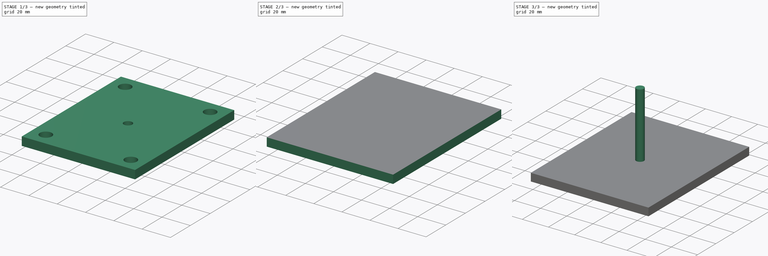
[diagram: build sequence overview — one tinted view per stage of 3, left to right]
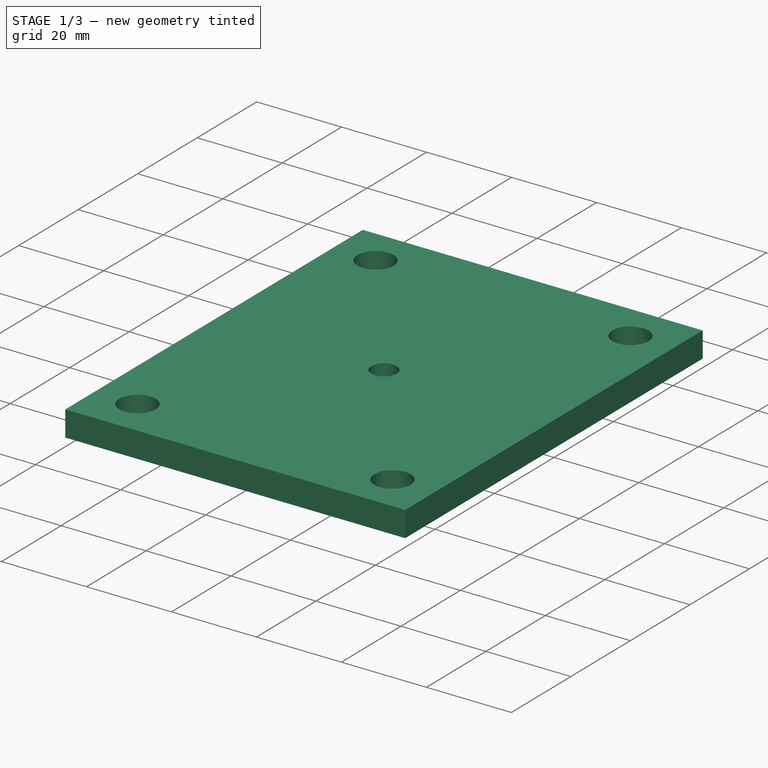
[diagram: stage 1 of 3 — iso view after this stage's code; geometry added in this stage tinted green]
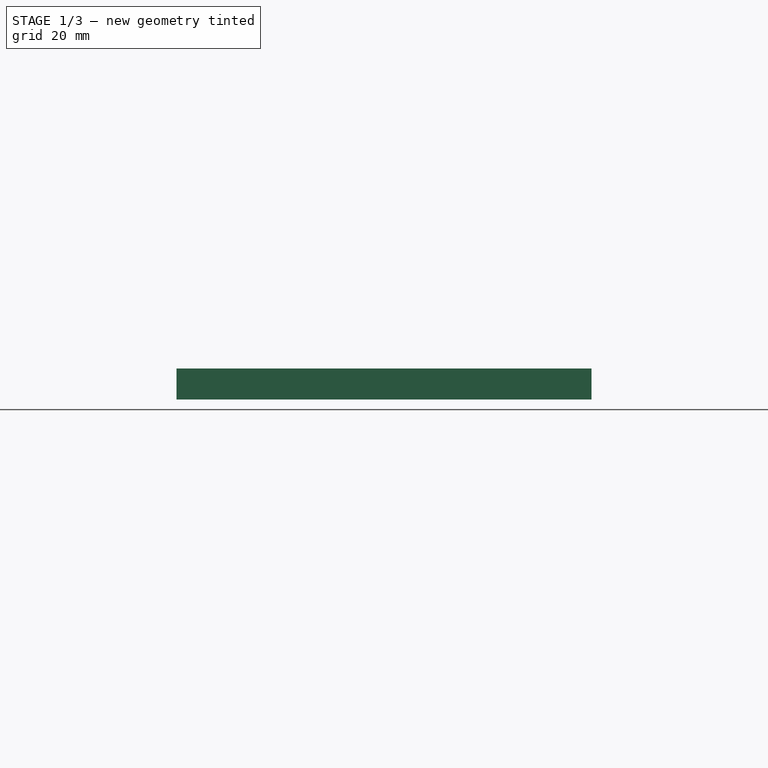
[diagram: stage 1 of 3 — front view after this stage's code; geometry added in this stage tinted green]
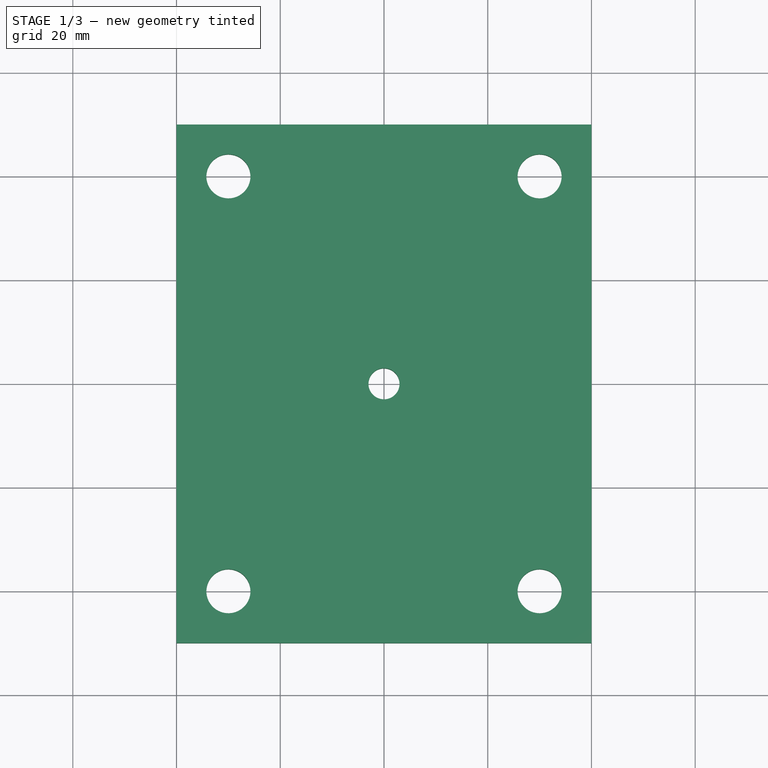
[diagram: stage 1 of 3 — top view after this stage's code; geometry added in this stage tinted green]
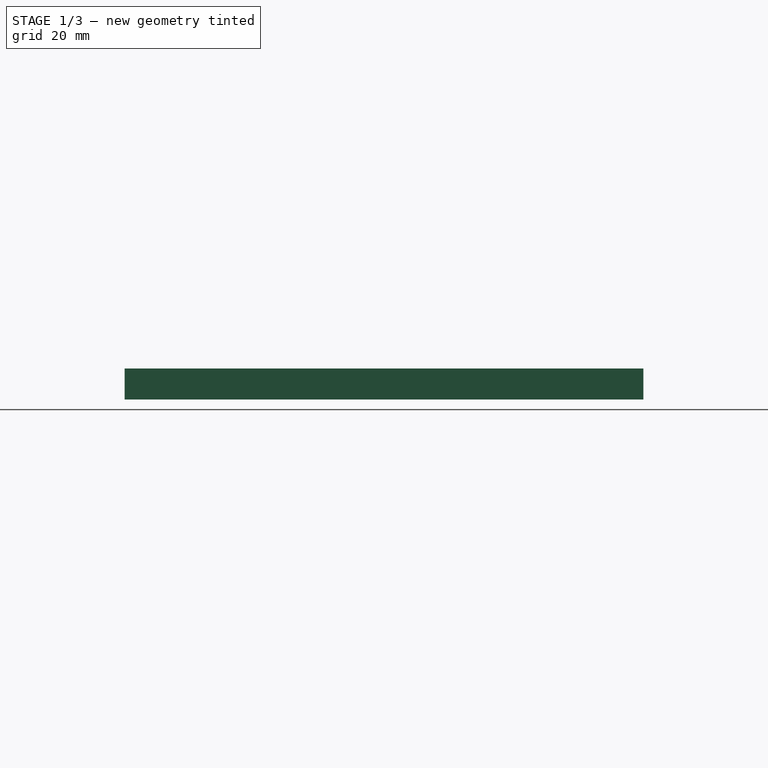
[diagram: stage 1 of 3 — right view after this stage's code; geometry added in this stage tinted green]
FCSTD DOCUMENT  (FreeCAD 0.21R33668 +26 (Git))
Label: Plate_6_mm_mill_3mm
License: All rights reserved
LicenseURL: https://en.wikipedia.org/wiki/All_rights_reserved
objects: Path::FeaturePython×5, Part::FeaturePython×4, App::DocumentObjectGroup×3, Spreadsheet::Sheet×1, App::FeaturePython×1, Sketcher::SketchObject×1, PartDesign::Pad×1, PartDesign::Body×1
note: 10 computed .brp shape members not serialized (recipe doc carries the construction recipe); baked Part::Feature solids carry a one-line shape summary decoded from their .brp

FEATURE [Path::FeaturePython] _mm_Endmill  label="6mm Endmill001"  # Path/CAM operation (typed FeaturePython)
  HorizFeed = 6.66667
  HorizRapid = 6.66667
  SpindleDir = 0
  SpindleSpeed = 0
  Tool = -> ToolBit001
  ToolNumber = 2
  VertFeed = 3.33333
  VertRapid = 3.33333
  expr: HorizRapid = SetupSheet.HorizRapid
  expr: VertRapid = SetupSheet.VertRapid
FEATURE [Sketcher::SketchObject] Sketch001  label="Sketch_Profile"
  FullyConstrained = true
  MapMode = 5
  Placement = pos=(0,0,0) rot=(0,0,1;3.14159rad)
  expr: Constraints[11] = Spreadsheet.Width
  expr: Constraints[12] = Spreadsheet.Height
  expr: Constraints[25] = Spreadsheet.Width - 20
  expr: Constraints[26] = Spreadsheet.Height - 20
  sketch-geometry (15):
    g0: Circle CenterX=0 CenterY=0 CenterZ=0 NormalX=0 NormalY=0 NormalZ=1 AngleXU=0 Radius=3
    g1: LineSegment StartX=-40 StartY=50 StartZ=0 EndX=-40 EndY=-50 EndZ=0
    g2: LineSegment StartX=-40 StartY=-50 StartZ=0 EndX=40 EndY=-50 EndZ=0
    g3: LineSegment StartX=40 StartY=-50 StartZ=0 EndX=40 EndY=50 EndZ=0
    g4: LineSegment StartX=40 StartY=50 StartZ=0 EndX=-40 EndY=50 EndZ=0
    g5: GeomPoint X=0 Y=0 Z=0
    g6: Circle CenterX=-30 CenterY=40 CenterZ=0 NormalX=0 NormalY=0 NormalZ=1 AngleXU=0 Radius=4.25
    g7: LineSegment StartX=-30 StartY=40 StartZ=0 EndX=-30 EndY=-40 EndZ=0
    g8: LineSegment StartX=-30 StartY=-40 StartZ=0 EndX=30 EndY=-40 EndZ=0
    g9: LineSegment StartX=30 StartY=-40 StartZ=0 EndX=30 EndY=40 EndZ=0
    g10: LineSegment StartX=30 StartY=40 StartZ=0 EndX=-30 EndY=40 EndZ=0
    g11: GeomPoint X=0 Y=0 Z=0
    g12: Circle CenterX=30 CenterY=40 CenterZ=0 NormalX=0 NormalY=0 NormalZ=1 AngleXU=0 Radius=4.25
    g13: Circle CenterX=-30 CenterY=-40 CenterZ=0 NormalX=0 NormalY=0 NormalZ=1 AngleXU=0 Radius=4.25
    g14: Circle CenterX=30 CenterY=-40 CenterZ=0 NormalX=0 NormalY=0 NormalZ=1 AngleXU=0 Radius=4.25
  constraints (34):
    c: Diameter(g0) = 6
    c: Coincident(g1,g2)
    c: Coincident(g2,g3)
    c: Coincident(g3,g4)
    c: Coincident(g4,g1)
    c: Horizontal(g2)
    c: Horizontal(g4)
    c: Vertical(g1)
    c: Vertical(g3)
    c: Symmetric(g2,g1,g5)
    c: Coincident(g5,g0)
    c: DistanceX(g4,g4) = 80
    c: DistanceY(g1,g1) = 100
    c: Coincident(g0,g-1)
    c: Diameter(g6) = 8.5
    c: Coincident(g7,g8)
    c: Coincident(g8,g9)
    c: Coincident(g9,g10)
    c: Coincident(g10,g7)
    c: Horizontal(g8)
    c: Horizontal(g10)
    c: Vertical(g7)
    c: Vertical(g9)
    c: Symmetric(g8,g7,g11)
    c: Coincident(g11,g0)
    c: DistanceX(g10,g10) = 60
    c: DistanceY(g7,g7) = 80
    c: Coincident(g7,g6)
    c: Equal(g6,g12) = 8.5
    c: Coincident(g12,g9)
    c: Equal(g6,g13) = 8.5
    c: Coincident(g13,g7)
    c: Equal(g6,g14) = 8.5
    c: Coincident(g14,g8)
FEATURE [PartDesign::Pad] Pad
  Direction = (0,0,1)
  Length = 6
  Length2 = 10
  Placement = pos=(0,0,0) rot=(0,0,1;3.14159rad)
  Profile = -> Sketch001
  ReferenceAxis = -> Sketch001 [N_Axis]
  Reversed = true
  Type = 0
  expr: Length = Spreadsheet.Thickness
FEATURE [Path::FeaturePython] _mm_Endmill001  label="3mm Endmill001"  # Path/CAM operation (typed FeaturePython)
  HorizFeed = 6.66667
  HorizRapid = 6.66667
  SpindleDir = 0
  SpindleSpeed = 0
  Tool = -> ToolBit
  ToolNumber = 3
  VertFeed = 3.33333
  VertRapid = 3.33333
  expr: HorizRapid = SetupSheet.HorizRapid
  expr: VertRapid = SetupSheet.VertRapid
FEATURE [App::DocumentObjectGroup] Tools
  Group = -> [_mm_Endmill,_mm_Endmill001]
FEATURE [Part::FeaturePython] Clone  label="Model-Contur_in plate_8mm"  # Draft clone (typed FeaturePython)
  AttacherType = Attacher::AttachEngine3D
  Fuse = false
  Objects = -> [Body]
  PathResource = Model
  Placement = pos=(0,0,0) rot=(0,0,1;3.14159rad)
  Scale = (1,1,1)
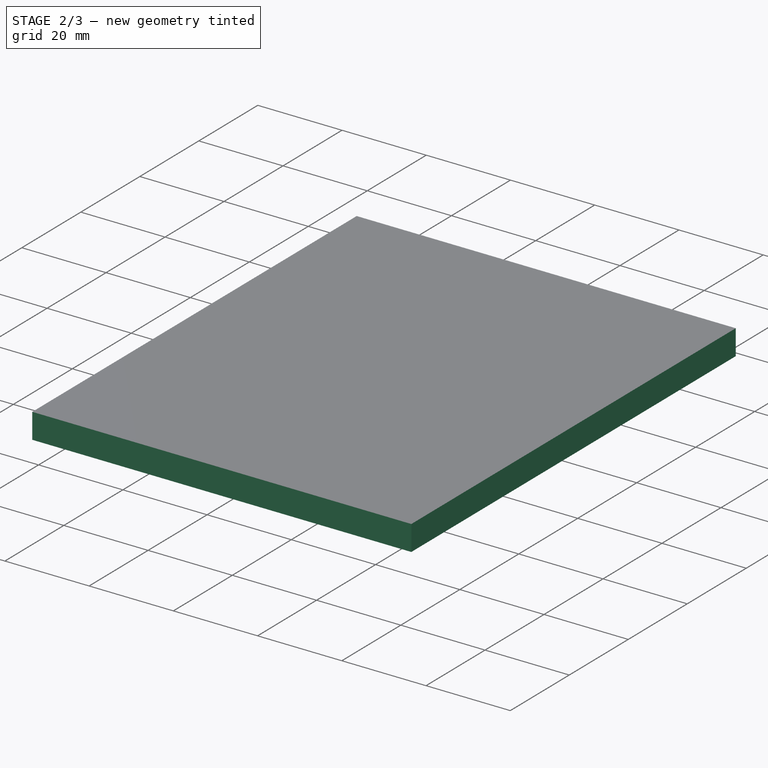
[diagram: stage 2 of 3 — iso view after this stage's code; geometry added in this stage tinted green]
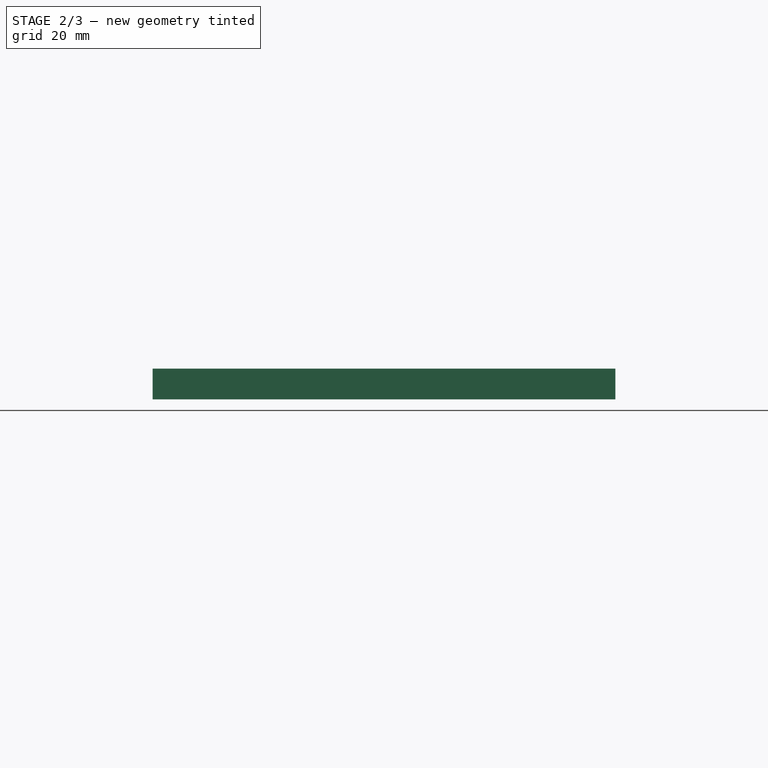
[diagram: stage 2 of 3 — front view after this stage's code; geometry added in this stage tinted green]
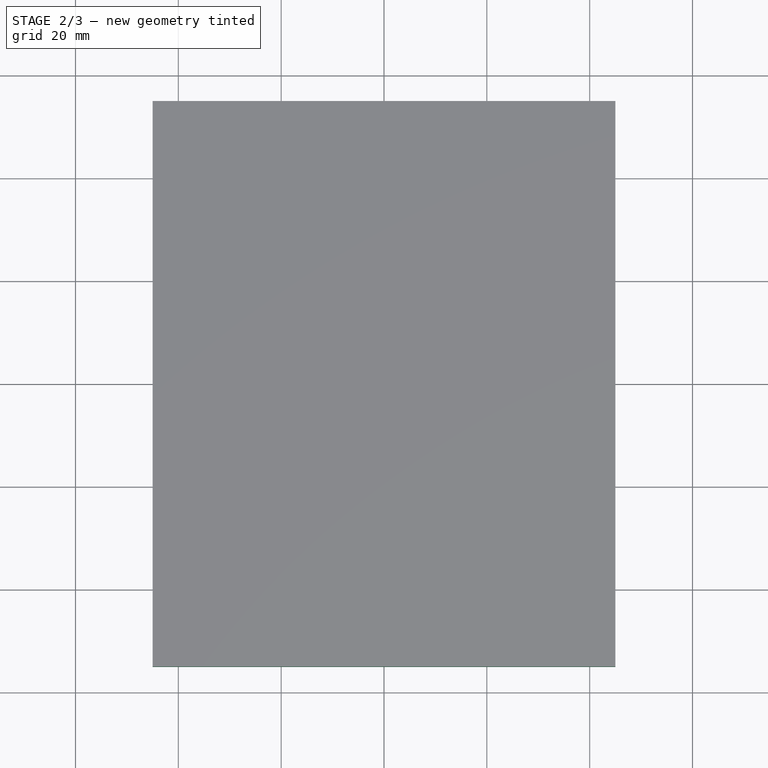
[diagram: stage 2 of 3 — top view after this stage's code; geometry added in this stage tinted green]
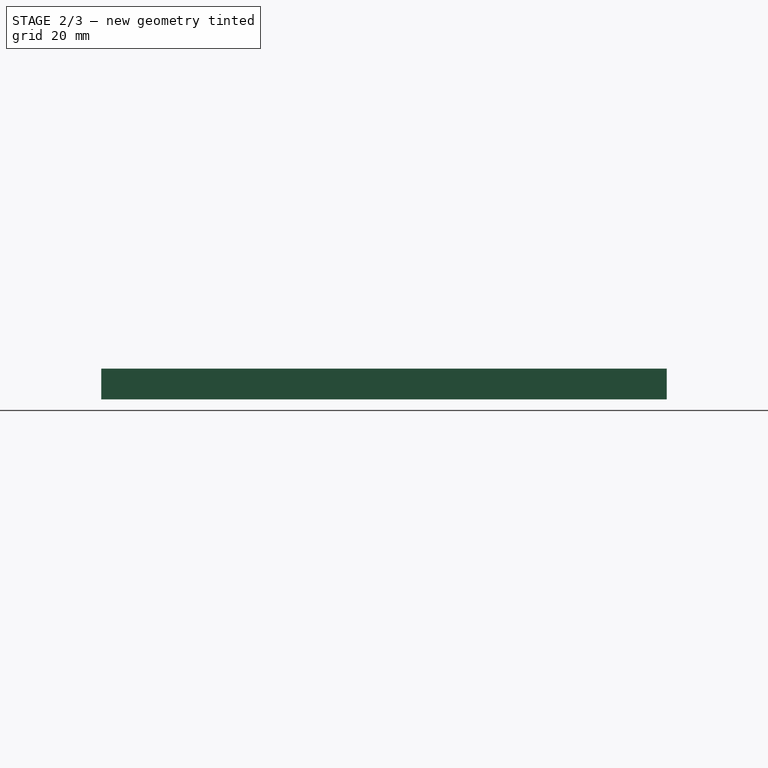
[diagram: stage 2 of 3 — right view after this stage's code; geometry added in this stage tinted green]
FEATURE [App::DocumentObjectGroup] Model
  Group = -> [Clone]
FEATURE [Path::FeaturePython] Adaptive  # Path/CAM operation (typed FeaturePython)
  Active = true
  Base = -> [Clone]
  ClearanceHeight = 15
  CoolantMode = 0
  CycleTime = 00:03:24
  ExtensionCorners = true
  ExtensionLengthDefault = 1.5
  FinalDepth = -6
  FinishDepth = 0
  FinishingProfile = true
  ForceInsideOut = false
  HelixAngle = 6
  HelixConeAngle = 0
  HelixDiameterLimit = 1.2
  KeepToolDownRatio = 3
  LiftDistance = 0
  OpFinalDepth = -6
  OpStartDepth = 0
  OpStockZMax = 0
  OpStockZMin = -6
  OpToolDiameter = 3
  OperationType = 0
  SafeHeight = 15
  Side = 1
  StartDepth = 0
  StepDown = 6
  StepOver = 25
  StockToLeave = 0
  StopProcessing = false
  Stopped = false
  Tolerance = 0.1
  ToolController = -> _mm_Endmill001
  UseHelixArcs = true
  UseOutline = false
  expr: ClearanceHeight = OpStockZMax + SetupSheet.ClearanceHeightOffset
  expr: ExtensionLengthDefault = OpToolDiameter / 2
  expr: FinalDepth = -Spreadsheet.Thickness
  expr: SafeHeight = OpStockZMax + SetupSheet.SafeHeightOffset
  expr: StartDepth = OpStartDepth
  expr: StepDown = OpToolDiameter * 2
FEATURE [Path::FeaturePython] Profile  # Path/CAM operation (typed FeaturePython)
  Active = true
  AreaParams:
    Tolerance = 1e-07
    FitArcs = True
    Simplify = False
    CleanDistance = 0.0
    Accuracy = 0.01
    Unit = 1.0
    MinArcPoints = 4
    MaxArcPoints = 100
    ClipperScale = 10000000.0
    Fill = 0
    Coplanar = 0
    Reorient = True
    Outline = False
    Explode = False
    OpenMode = 0
    Deflection = 0.01
    SubjectFill = 0
    ClipFill = 0
    Offset = 1.5
    ExtraPass = 0
    Stepover = 0.0
    LastStepover = 0.0
    JoinType = 0
    EndType = 0
    MiterLimit = 2.0
    RoundPrecision = 0.0
    PocketMode = 0
    ToolRadius = 1.0
    PocketExtraOffset = 0.0
    PocketStepover = 0.0
    PocketLastStepover = 0.0
    FromCenter = False
    Angle = 45.0
    AngleShift = 0.0
    Shift = 0.0
    Thicken = False
    SectionCount = -1
    Stepdown = 1.0
    SectionOffset = 0.0
    SectionTolerance = 1e-07
    SectionMode = 2
    Project = False
  Base = -> [Clone]
  ClearanceHeight = 15
  CoolantMode = 0
  CycleTime = 00:03:12
  Direction = 0
  FinalDepth = -6
  HandleMultipleFeatures = 0
  JoinType = 0
  MiterLimit = 0.1
  OffsetExtra = 0
  OpFinalDepth = -6
  OpStartDepth = 0
  OpStockZMax = 0
  OpStockZMin = -6
  OpToolDiameter = 3
  PathParams = {'orientation': 1, 'feedrate': 6.66667, 'feedrate_v': 3.33333, 'verbose': True, 'resume_height': 15.0, 'retraction': 15.0, 'return_end': True, 'preamble': False}
  SafeHeight = 15
  Side = 0
  SplitArcs = false
  StartDepth = 0
  StartPoint = (0,0,0)
  StepDown = 2.25
  ToolController = -> _mm_Endmill001
  UseComp = true
  UseStartPoint = false
  processCircles = false
  processHoles = false
  processPerimeter = true
  expr: ClearanceHeight = OpStockZMax + SetupSheet.ClearanceHeightOffset
  expr: FinalDepth = OpFinalDepth
  expr: SafeHeight = OpStockZMax + SetupSheet.SafeHeightOffset
  expr: StartDepth = OpStartDepth
  expr: StepDown = OpToolDiameter * 0.75
FEATURE [App::DocumentObjectGroup] Operations
  Group = -> [Adaptive,Profile]
FEATURE [Part::FeaturePython] Stock  # WARN: FeaturePython — macro-defined, semantics opaque (R4)
  Base = -> Model
  ExtXneg = 5
  ExtXpos = 5
  ExtYneg = 5
  ExtYpos = 5
  ExtZneg = 0
  ExtZpos = 0
  Placement = pos=(-40,-50,-6) rot=(0,0,1;0rad)
  StockType = FromBase
FEATURE [Path::FeaturePython] Job  # Path/CAM operation (typed FeaturePython)
  CycleTime = 00:06:36
  Fixtures = G54
  GeometryTolerance = 0.01
  JobType = 0
  LastPostProcessDate = 2023-11-19 17:11:52.294799
  LastPostProcessOutput = <userpath>\Desktop\CNC\Samsung_S20\Plate_6_mm_mill_3mm.nc
  Model = -> Model
  Operations = -> Operations
  OrderOutputBy = 0
  PostProcessor = 10
  PostProcessorArgs = --bcnc --no-translate_drill
  PostProcessorOutputFile = <userpath>/Desktop/CNC/Samsung_S20/Plate_6_mm_mill_3mm.nc
  SetupSheet = -> SetupSheet
  SplitOutput = false
  Stock = -> Stock
  Tools = -> Tools
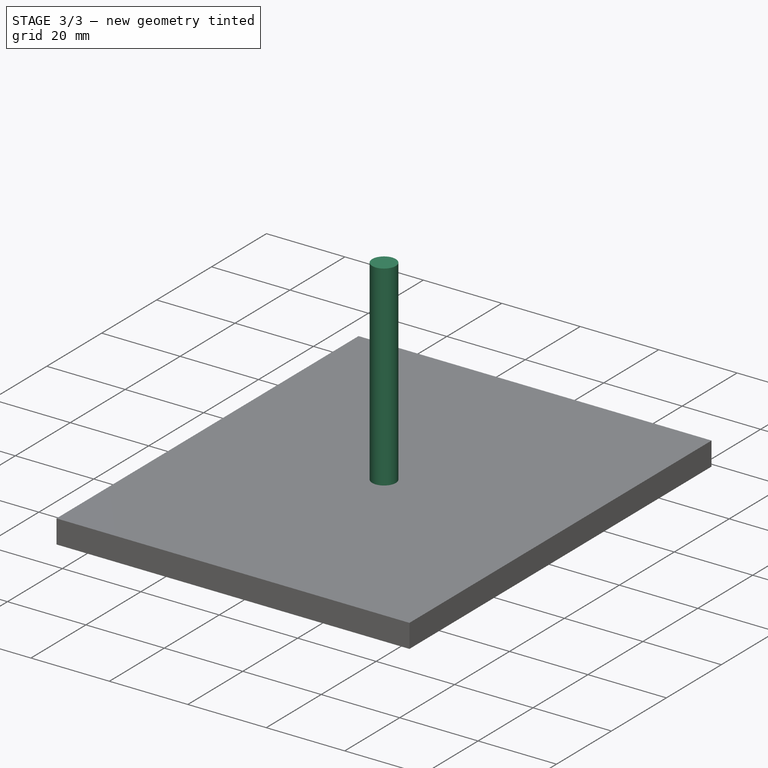
[diagram: stage 3 of 3 — iso view after this stage's code; geometry added in this stage tinted green]
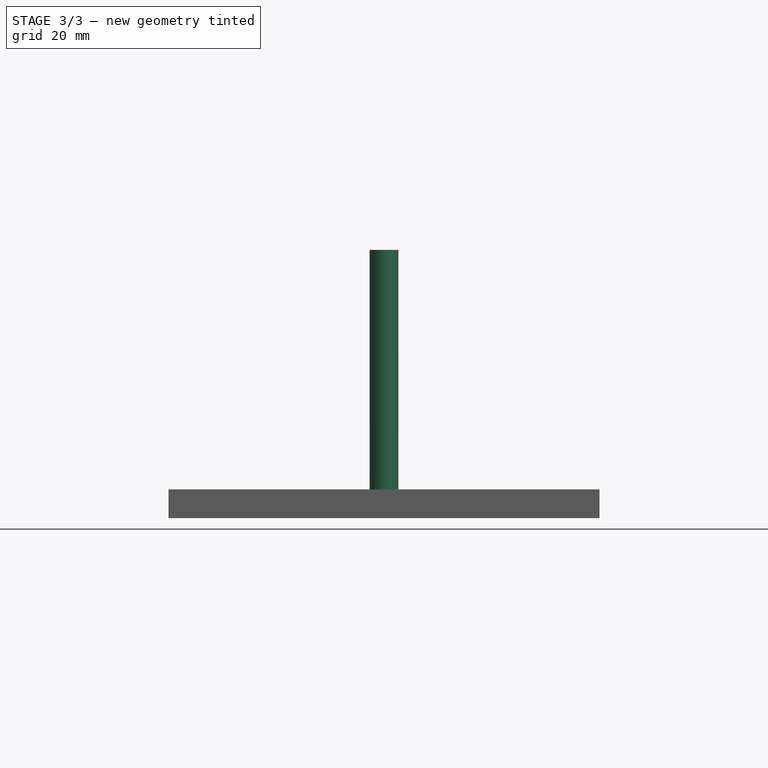
[diagram: stage 3 of 3 — front view after this stage's code; geometry added in this stage tinted green]
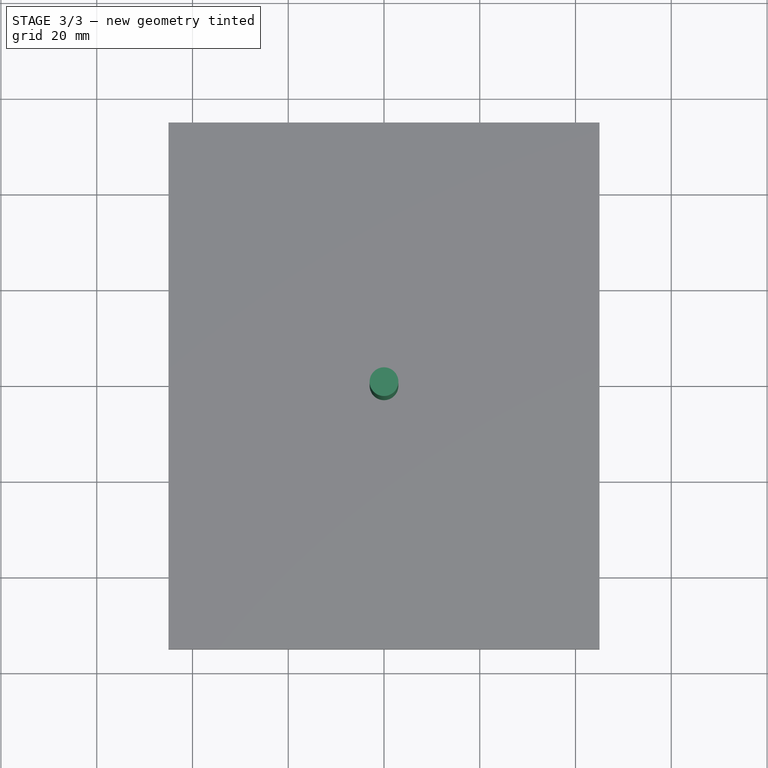
[diagram: stage 3 of 3 — top view after this stage's code; geometry added in this stage tinted green]
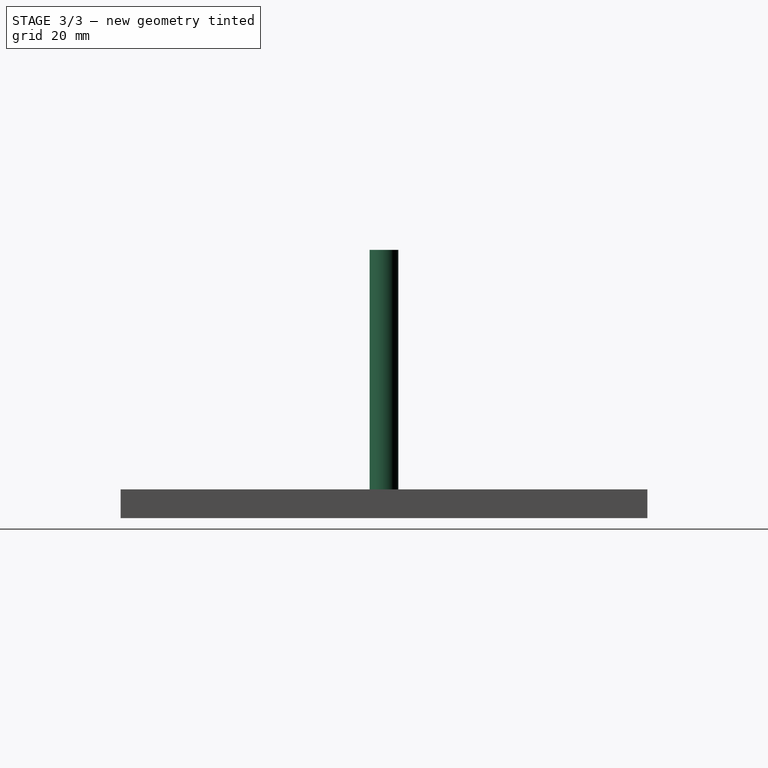
[diagram: stage 3 of 3 — right view after this stage's code; geometry added in this stage tinted green]
FEATURE [Spreadsheet::Sheet] Spreadsheet
  cells = A2='Thickness; B2(Thickness)=6; A3='Height; B3(Height)=100; A4='Width; B4(Width)=80; A5='Long; B5(Long)=200; A7='Bort; B7(Bort)=7; A8='Phone_Bort; B8(Phone_Bort)=10
FEATURE [App::FeaturePython] SetupSheet  # Path/CAM operation (typed FeaturePython)
  ClearanceHeightExpression = OpStockZMax+SetupSheet.ClearanceHeightOffset
  ClearanceHeightOffset = 15
  CoolantMode = 0
  CoolantModes = None | Flood | Mist
  FinalDepthExpression = OpFinalDepth
  HorizRapid = 6.66667
  SafeHeightExpression = OpStockZMax+SetupSheet.SafeHeightOffset
  SafeHeightOffset = 15
  StartDepthExpression = OpStartDepth
  StepDownExpression = OpToolDiameter
  VertRapid = 3.33333
FEATURE [Part::FeaturePython] ToolBit001  label="6mm Endmill"  # Path/CAM toolbit (typed FeaturePython)
  BitPropertyNames = Chipload | CuttingEdgeHeight | Diameter | Flutes | Length | Material | ShankDiameter | SpindleDirection
  BitShape = C:/Program Files/FreeCAD 0.21/Mod/Path/Tools\Shape\endmill.fcstd
  Chipload = 0
  CuttingEdgeHeight = 30
  Diameter = 6
  File = C:/Program Files/FreeCAD 0.21/Mod/Path/Tools/Bit/6mm_Endmill.fctb
  Flutes = 0
  Length = 50
  Material = 0
  ShankDiameter = 6
  ShapeName = endmill
  SpindleDirection = 0
FEATURE [PartDesign::Body] Body  label="Contur_in plate_6mm"
  Group = -> [Sketch001,Pad]
  Origin = -> Origin
  Tip = -> Pad
FEATURE [Part::FeaturePython] ToolBit  label="3mm Endmill"  # Path/CAM toolbit (typed FeaturePython)
  BitPropertyNames = Chipload | CuttingEdgeHeight | Diameter | Flutes | Length | Material | ShankDiameter | SpindleDirection
  BitShape = C:/Program Files/FreeCAD 0.21/Mod/Path/Tools\Shape\endmill.fcstd
  Chipload = 0
  CuttingEdgeHeight = 12
  Diameter = 3
  File = C:/Program Files/FreeCAD 0.21/Mod/Path/Tools/Bit/3mm_Endmill.fctb
  Flutes = 0
  Length = 45
  Material = 0
  ShankDiameter = 3
  ShapeName = endmill
  SpindleDirection = 0
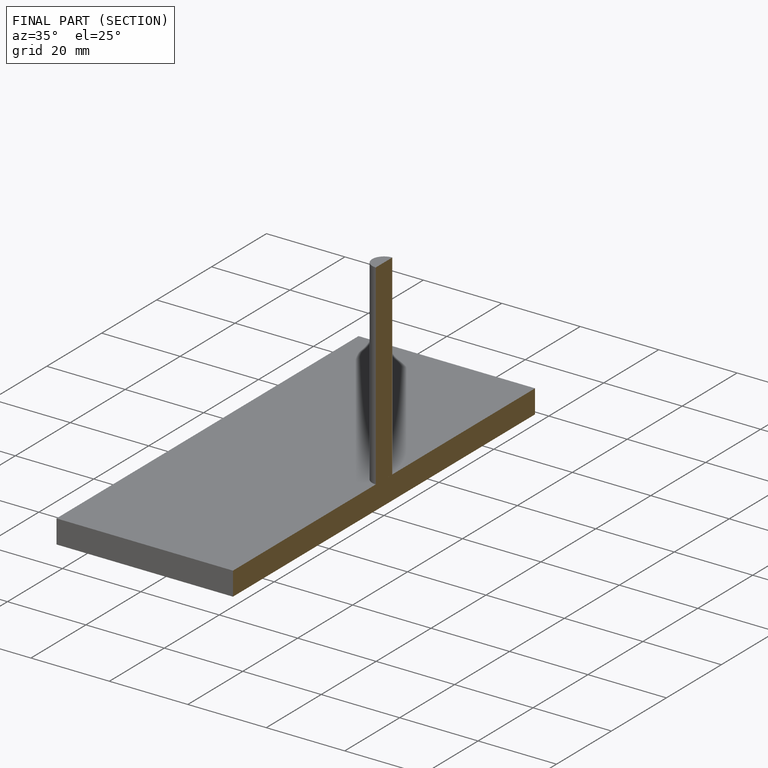
[diagram: finished part — half-section view (interior)]
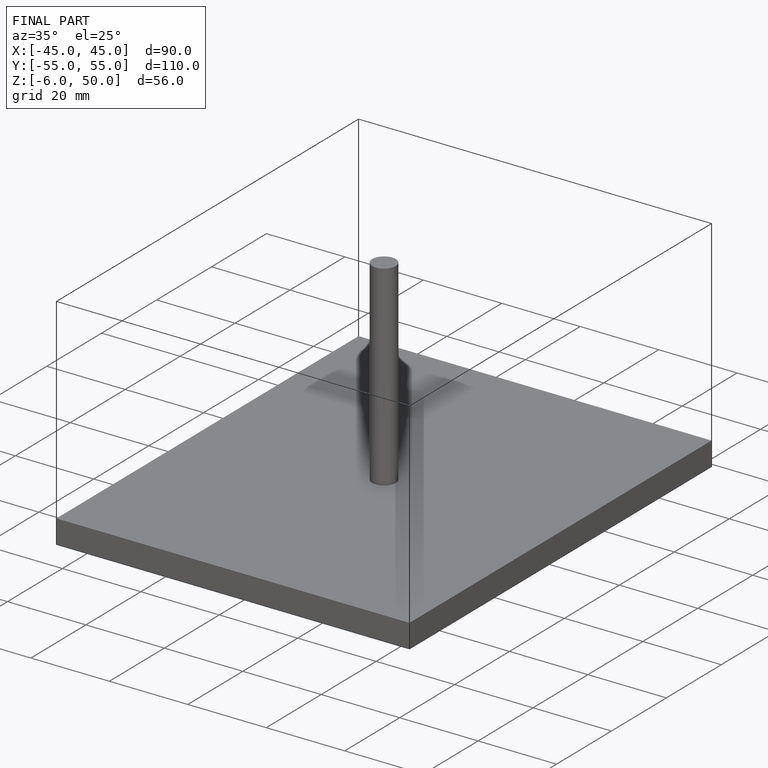
[diagram: finished part — iso view with bounding-box wireframe]
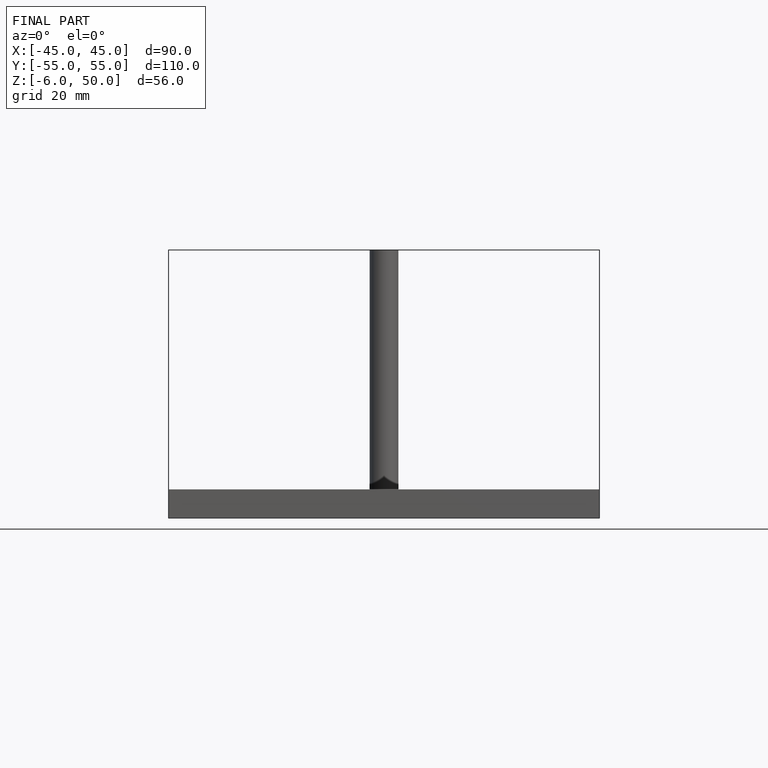
[diagram: finished part — front view with bounding-box wireframe]
